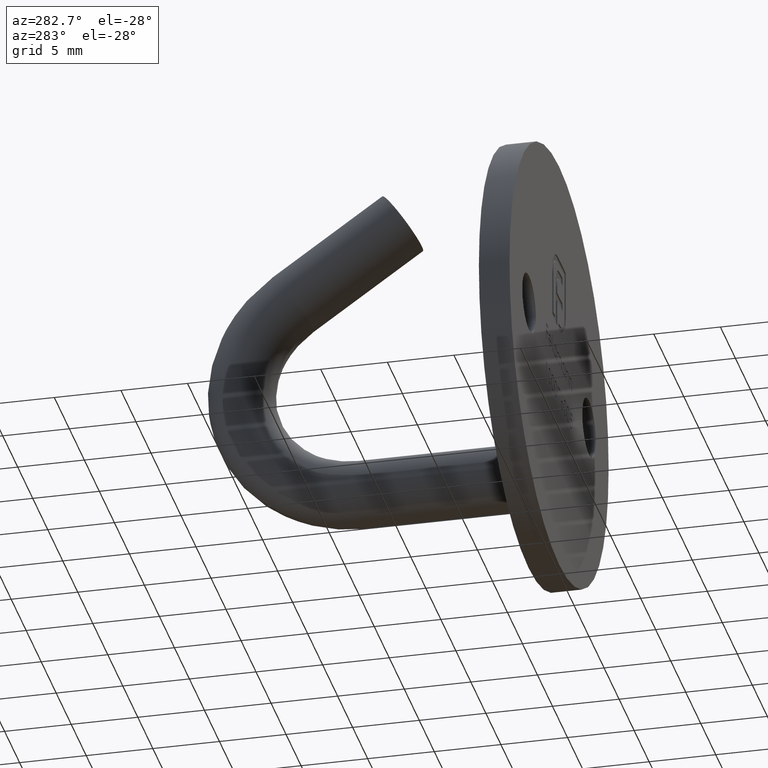
[diagram: clean part render]
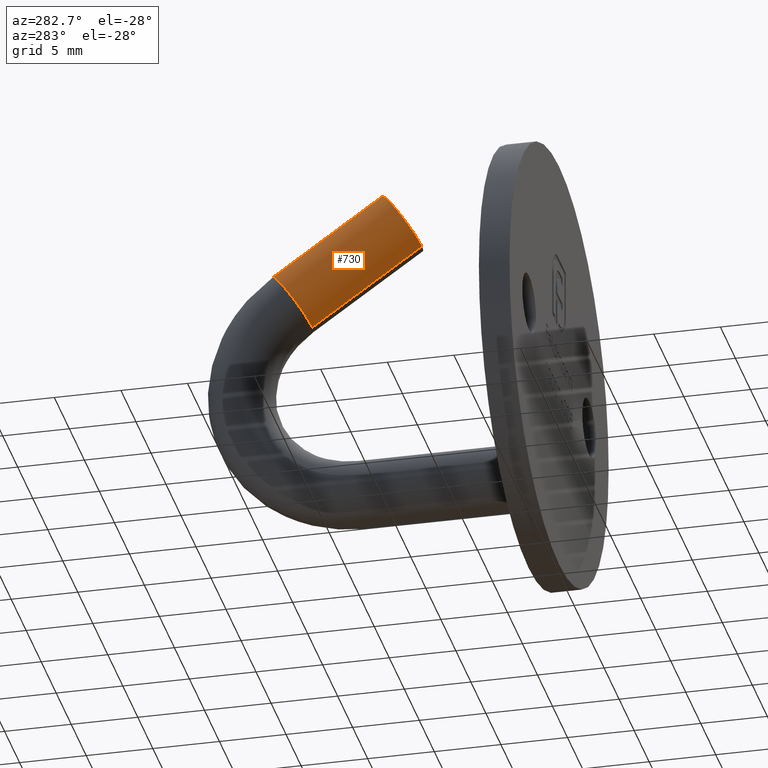
[diagram: same view with one face highlighted and labeled with its STEP entity id]
A machine part, auxiliary view. The second image highlights one B-rep face of the part: STEP entity #730.
In plain terms, the highlighted cylindrical surface (edge-blend (fillet) strip) has radius 2.5 mm, axis along (0, -0.8192, 0.5736).
Its self-contained STEP definition (entity closure, byte-faithful):
#499 = EDGE_CURVE ( 'NONE', #2883, #1597, #13985, .T. ) ;
#730 = ADVANCED_FACE ( 'NONE', ( #13048 ), #2621, .T. ) ;
#1597 = VERTEX_POINT ( 'NONE', #2035 ) ;
#1968 = EDGE_LOOP ( 'NONE', ( #6114, #6659, #3391, #2879 ) ) ;
#2028 = CARTESIAN_POINT ( 'NONE',  ( 3.061616997868383634E-16, 21.39612901803698364, 9.420248509323439379 ) ) ;
#2035 = CARTESIAN_POINT ( 'NONE',  ( 3.061616997868383634E-16, 13.16788218175519631, 15.18172897033807089 ) ) ;
#2316 = AXIS2_PLACEMENT_3D ( 'NONE', #4203, #6520, #10144 ) ;
#2356 = CARTESIAN_POINT ( 'NONE',  ( 0.000000000000000000, 18.52824683628177382, 5.324488287878466508 ) ) ;
#2398 = EDGE_CURVE ( 'NONE', #8525, #1597, #15463, .T. ) ;
#2621 = CYLINDRICAL_SURFACE ( 'NONE', #13994, 2.499999999999999556 ) ;
#2879 = ORIENTED_EDGE ( 'NONE', *, *, #2398, .T. ) ;
#2883 = VERTEX_POINT ( 'NONE', #2028 ) ;
#2958 = AXIS2_PLACEMENT_3D ( 'NONE', #13998, #13907, #15305 ) ;
#3391 = ORIENTED_EDGE ( 'NONE', *, *, #7664, .T. ) ;
#4090 = CARTESIAN_POINT ( 'NONE',  ( 0.000000000000000000, 19.96218792715938051, 7.372368398600952943 ) ) ;
#4203 = CARTESIAN_POINT ( 'NONE',  ( 0.000000000000000000, 11.73394109087759318, 13.13384885961558446 ) ) ;
#4497 = VECTOR ( 'NONE', #5229, 1000.000000000000227 ) ;
#5229 = DIRECTION ( 'NONE',  ( 0.000000000000000000, -0.8191520442889952403, 0.5735764363510411634 ) ) ;
#5297 = CIRCLE ( 'NONE', #2958, 2.500000000000000444 ) ;
#5306 = CARTESIAN_POINT ( 'NONE',  ( 0.000000000000000000, 10.29999999999998828, 11.08596874889309625 ) ) ;
#5904 = EDGE_CURVE ( 'NONE', #8685, #2883, #5297, .T. ) ;
#6114 = ORIENTED_EDGE ( 'NONE', *, *, #499, .F. ) ;
#6520 = DIRECTION ( 'NONE',  ( 0.000000000000000000, 0.8191520442889949072, -0.5735764363510416075 ) ) ;
#6544 = DIRECTION ( 'NONE',  ( 0.000000000000000000, -0.8191520442889951292, 0.5735764363510411634 ) ) ;
#6604 = VECTOR ( 'NONE', #8333, 1000.000000000000227 ) ;
#6659 = ORIENTED_EDGE ( 'NONE', *, *, #5904, .F. ) ;
#7450 = CARTESIAN_POINT ( 'NONE',  ( 0.000000000000000000, 18.52824683628177738, 5.324488287878464732 ) ) ;
#7664 = EDGE_CURVE ( 'NONE', #8685, #8525, #11519, .T. ) ;
#8333 = DIRECTION ( 'NONE',  ( 0.000000000000000000, -0.8191520442889952403, 0.5735764363510411634 ) ) ;
#8525 = VERTEX_POINT ( 'NONE', #5306 ) ;
#8685 = VERTEX_POINT ( 'NONE', #2356 ) ;
#10144 = DIRECTION ( 'NONE',  ( 0.000000000000000000, 0.5735764363510411634, 0.8191520442889951292 ) ) ;
#11519 = LINE ( 'NONE', #7450, #4497 ) ;
#11666 = DIRECTION ( 'NONE',  ( 0.000000000000000000, -0.5735764363510407193, -0.8191520442889955733 ) ) ;
#13048 = FACE_OUTER_BOUND ( 'NONE', #1968, .T. ) ;
#13348 = CARTESIAN_POINT ( 'NONE',  ( 3.061616997868383634E-16, 21.39612901803698009, 9.420248509323441155 ) ) ;
#13907 = DIRECTION ( 'NONE',  ( 0.000000000000000000, 0.8191520442889949072, -0.5735764363510416075 ) ) ;
#13985 = LINE ( 'NONE', #13348, #6604 ) ;
#13994 = AXIS2_PLACEMENT_3D ( 'NONE', #4090, #6544, #11666 ) ;
#13998 = CARTESIAN_POINT ( 'NONE',  ( 0.000000000000000000, 19.96218792715938051, 7.372368398600952943 ) ) ;
#15305 = DIRECTION ( 'NONE',  ( 0.000000000000000000, 0.5735764363510419406, 0.8191520442889945741 ) ) ;
#15463 = CIRCLE ( 'NONE', #2316, 2.500000000000000888 ) ;